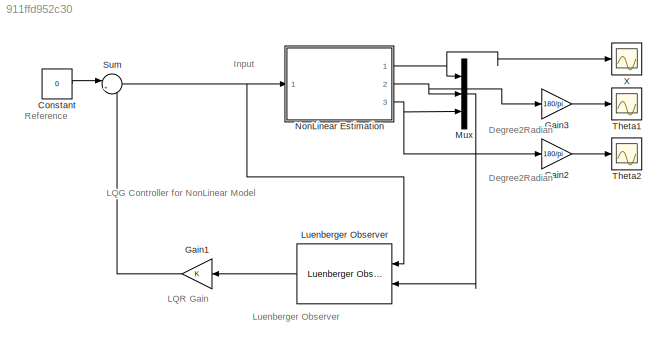
MODEL slx_911ffd952c30
KIND model
CONFIG AbsTol = auto
CONFIG EnableMultiTasking = off
CONFIG FixedStep = auto
CONFIG MaxStep = auto
CONFIG MinStep = auto
CONFIG RelTol = 1e-3
CONFIG SampleTimeConstraint = Unconstrained
CONFIG Solver = VariableStepAuto
CONFIG SolverName = VariableStepAuto
CONFIG StartTime = 0.0
CONFIG StopTime = 100
BLOCK [Constant] Constant
  Value = 0
BLOCK [Gain] Gain1
  Gain = K
  Multiplication = Matrix(K*u)
  OutDataTypeStr = Inherit: Inherit via internal rule
  ParamDataTypeStr = Inherit: Inherit via internal rule
  SaturateOnIntegerOverflow = off
BLOCK [Gain] Gain2
  Gain = 180/pi
  OutDataTypeStr = Inherit: Inherit via internal rule
  ParamDataTypeStr = Inherit: Inherit via internal rule
  SaturateOnIntegerOverflow = off
BLOCK [Gain] Gain3
  Gain = 180/pi
  OutDataTypeStr = Inherit: Inherit via internal rule
  ParamDataTypeStr = Inherit: Inherit via internal rule
  SaturateOnIntegerOverflow = off
BLOCK [Reference] Luenberger Observer  REF=peLuenbergerObserver/Luenberger Observer
  Ports = [2, 1]
  SourceBlock = peLuenbergerObserver/Luenberger Observer
  SourceProductBaseCode = PS
  SourceProductName = Simscape Electrical
  SourceType = Luenberger Observer
BLOCK [Mux] Mux
  DisplayOption = bar
  Inputs = 3
  Ports = [3, 1]
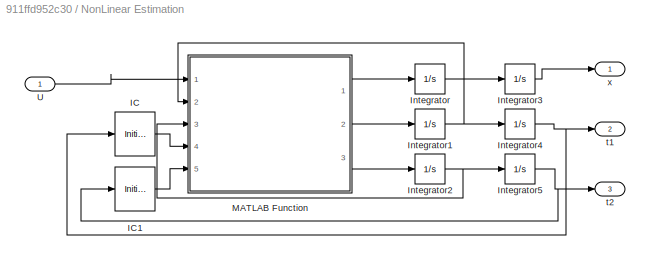
BLOCK [SubSystem] NonLinear Estimation 
  Ports = [1, 3]
  RequestExecContextInheritance = off
BLOCK [InitialCondition] NonLinear Estimation /IC
  Value = pi/10
BLOCK [InitialCondition] NonLinear Estimation /IC1
  Value = pi/20
BLOCK [Integrator] NonLinear Estimation /Integrator
  LowerSaturationLimit = -1000
  Ports = [1, 1]
  UpperSaturationLimit = 1000
BLOCK [Integrator] NonLinear Estimation /Integrator1
  LowerSaturationLimit = -1000
  Ports = [1, 1]
  UpperSaturationLimit = 1000
BLOCK [Integrator] NonLinear Estimation /Integrator2
  LowerSaturationLimit = -1000
  Ports = [1, 1]
  UpperSaturationLimit = 1000
BLOCK [Integrator] NonLinear Estimation /Integrator3
  Ports = [1, 1]
BLOCK [Integrator] NonLinear Estimation /Integrator4
  Ports = [1, 1]
BLOCK [Integrator] NonLinear Estimation /Integrator5
  Ports = [1, 1]
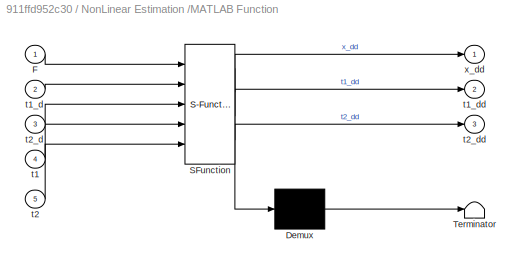
BLOCK [SubSystem] NonLinear Estimation /MATLAB Function
  ErrorFcn = Stateflow.Translate.translate
  PermitHierarchicalResolution = ExplicitOnly
  Ports = [5, 3]
  RequestExecContextInheritance = off
  SFBlockType = MATLAB Function
  TreatAsAtomicUnit = on
BLOCK [Demux] NonLinear Estimation /MATLAB Function/ Demux 
  Outputs = 1
  Ports = [1, 1]
BLOCK [S-Function] NonLinear Estimation /MATLAB Function/ SFunction 
  EnableBusSupport = off
  FunctionName = sf_sfun
  PortCounts = [5 4]
  Ports = [5, 4]
  SFcnIsStateOwnerBlock = off
  SFunctionDeploymentMode = off
  Tag = Stateflow S-Function 2
BLOCK [Terminator] NonLinear Estimation /MATLAB Function/ Terminator 
BLOCK [Inport] NonLinear Estimation /MATLAB Function/F
  IconDisplay = Port number
BLOCK [Inport] NonLinear Estimation /MATLAB Function/t1
  IconDisplay = Port number
  Port = 4
BLOCK [Inport] NonLinear Estimation /MATLAB Function/t1_d
  IconDisplay = Port number
  Port = 2
BLOCK [Outport] NonLinear Estimation /MATLAB Function/t1_dd
  IconDisplay = Port number
  Port = 2
  VectorParamsAs1DForOutWhenUnconnected = off
BLOCK [Inport] NonLinear Estimation /MATLAB Function/t2
  IconDisplay = Port number
  Port = 5
BLOCK [Inport] NonLinear Estimation /MATLAB Function/t2_d
  IconDisplay = Port number
  Port = 3
BLOCK [Outport] NonLinear Estimation /MATLAB Function/t2_dd
  IconDisplay = Port number
  Port = 3
  VectorParamsAs1DForOutWhenUnconnected = off
BLOCK [Outport] NonLinear Estimation /MATLAB Function/x_dd
  IconDisplay = Port number
  VectorParamsAs1DForOutWhenUnconnected = off
BLOCK [Inport] NonLinear Estimation /U
  IconDisplay = Port number
BLOCK [Outport] NonLinear Estimation /t1
  IconDisplay = Port number
  Port = 2
  VectorParamsAs1DForOutWhenUnconnected = off
BLOCK [Outport] NonLinear Estimation /t2
  IconDisplay = Port number
  Port = 3
  VectorParamsAs1DForOutWhenUnconnected = off
BLOCK [Outport] NonLinear Estimation /x
  IconDisplay = Port number
  VectorParamsAs1DForOutWhenUnconnected = off
BLOCK [Sum] Sum
  IconShape = round
  InputSameDT = off
  Inputs = |+-
  OutDataTypeStr = Inherit: Inherit via internal rule
  Ports = [2, 1]
  SaturateOnIntegerOverflow = off
BLOCK [Scope] Theta1
  Floating = off
  NumInputPorts = 1
  Ports = [1]
  ScopeSpecificationString = Simulink.scopes.TimeScopeBlockCfg('CurrentConfiguration', extmgr.ConfigurationSet(extmgr.Configuration('Core','General UI',true),extmgr.Configuration('Core','Source UI',true),extmgr.Configuration('Sources','WiredSimulink',true,'DataLoggingVariableName','ScopeData1'),extmgr.Configuration('Visuals','Time Domain',true,'SerializedDisplays',{struct('MinYLimReal','-0.87761','MaxYLimReal','0.29568','YLab...<+1364ch>
BLOCK [Scope] Theta2
  Floating = off
  NumInputPorts = 1
  Ports = [1]
  ScopeSpecificationString = Simulink.scopes.TimeScopeBlockCfg('CurrentConfiguration', extmgr.ConfigurationSet(extmgr.Configuration('Core','General UI',true),extmgr.Configuration('Core','Source UI',true),extmgr.Configuration('Sources','WiredSimulink',true,'DataLoggingVariableName','ScopeData2'),extmgr.Configuration('Visuals','Time Domain',true,'SerializedDisplays',{struct('MinYLimReal','-1.47175','MaxYLimReal','0.52089','YLab...<+1364ch>
BLOCK [Scope] X
  Floating = off
  NumInputPorts = 1
  Ports = [1]
  ScopeSpecificationString = Simulink.scopes.TimeScopeBlockCfg('CurrentConfiguration', extmgr.ConfigurationSet(extmgr.Configuration('Core','General UI',true),extmgr.Configuration('Core','Source UI',true),extmgr.Configuration('Sources','WiredSimulink',true,'DataLoggingVariableName','ScopeData2'),extmgr.Configuration('Visuals','Time Domain',true,'SerializedDisplays',{struct('MinYLimReal','-0.37379','MaxYLimReal','0.04153','YLab...<+1428ch>
ANNOTATION (root): Degree2Radian
ANNOTATION (root): Input
ANNOTATION (root): LQG Controller for NonLinear Model
ANNOTATION (root): LQR Gain
ANNOTATION (root): Luenberger Observer
ANNOTATION (root): Reference
LINE Constant:1 -> Sum:1
LINE Gain1:1 -> Sum:2
LINE Gain2:1 -> Theta2:1
LINE Gain3:1 -> Theta1:1
LINE Luenberger Observer:1 -> Gain1:1
LINE Mux:1 -> Luenberger Observer:2
LINE NonLinear Estimation /IC1:1 -> NonLinear Estimation /MATLAB Function:5
LINE NonLinear Estimation /IC:1 -> NonLinear Estimation /MATLAB Function:4
NET NonLinear Estimation /Integrator1:1 -> NonLinear Estimation /Integrator4:1, NonLinear Estimation /MATLAB Function:2
NET NonLinear Estimation /Integrator2:1 -> NonLinear Estimation /Integrator5:1, NonLinear Estimation /MATLAB Function:3
LINE NonLinear Estimation /Integrator3:1 -> NonLinear Estimation /x:1
NET NonLinear Estimation /Integrator4:1 -> NonLinear Estimation /IC:1, NonLinear Estimation /t1:1
NET NonLinear Estimation /Integrator5:1 -> NonLinear Estimation /IC1:1, NonLinear Estimation /t2:1
LINE NonLinear Estimation /Integrator:1 -> NonLinear Estimation /Integrator3:1
LINE NonLinear Estimation /MATLAB Function:1 -> NonLinear Estimation /Integrator:1
LINE NonLinear Estimation /MATLAB Function:2 -> NonLinear Estimation /Integrator1:1
LINE NonLinear Estimation /MATLAB Function:3 -> NonLinear Estimation /Integrator2:1
LINE NonLinear Estimation /U:1 -> NonLinear Estimation /MATLAB Function:1
NET NonLinear Estimation :1 -> Mux:1, X:1
NET NonLinear Estimation :2 -> Gain3:1, Mux:2
NET NonLinear Estimation :3 -> Gain2:1, Mux:3
NET Sum:1 -> Luenberger Observer:1, NonLinear Estimation :1
note: NET lines group one-source signal fan-out (src -> all destinations, sorted); 1:1 wires keep LINE
CHART NonLinear Estimation
/MATLAB Function states=1 transitions=1
  STATE_LABEL 'eML_blk_kernel()'
  STATE_LABEL 'SCRIPT:\nfunction [x_dd,t1_dd,t2_dd] = NonLinear_Estimation(F,t1_d,t2_d,t1,t2)\n\n%% System Parameters\nl1 = 20;\nl2 = 10;\nm1 = 100;\nm2 = 100;\nM = 1000;\ng=9.8;\n\n%% Variables\nc1 = cos(t1);\nc2 = cos(t2);\ns1 = sin(t1);\ns2 = sin(t2);\n\n%% x_dd\nx_dd = (F- (m1*l1*(t1_d^2)*(s1)) - (m2*l2*(t2_d^2)*(s2)) - m1*c1*s1*g - m2*c2*s2*g)/(M + m1*(s1^2) + m2*(s2^2));\n\n%% t1_dd\nt1_dd = (x_dd*c1 - g*s1)/l1;\n\n%% t2_dd\nt2_d...<+29ch>'
